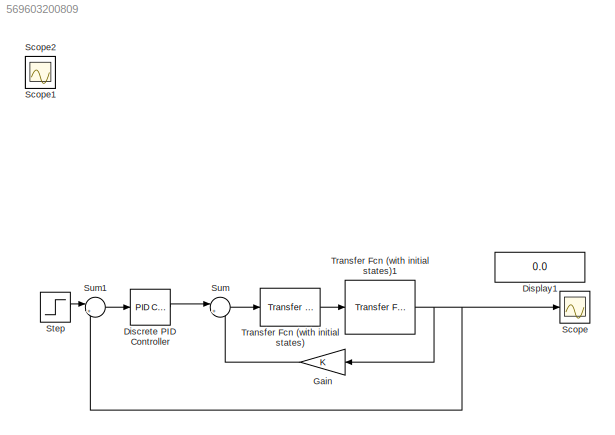
MODEL slx_569603200809
KIND model
CONFIG AbsTol = auto
CONFIG EnableMultiTasking = off
CONFIG FixedStep = auto
CONFIG MaxStep = auto
CONFIG MinStep = auto
CONFIG RelTol = 1e-3
CONFIG SampleTimeConstraint = Unconstrained
CONFIG Solver = VariableStepAuto
CONFIG SolverName = VariableStepAuto
CONFIG StartTime = 0.0
CONFIG StopTime = 27.2
WORKSPACE source: MAT-file member
WORKSPACE B = 7.85992811423e-18
BLOCK [Reference] Discrete PID Controller  REF=simulink/Continuous/PID Controller
  Ports = [1, 1]
  SourceBlock = simulink/Continuous/PID Controller
  SourceProductBaseCode = SL
  SourceProductName = Simulink
  SourceType = PID 1dof
BLOCK [Display] Display1
  Decimation = 1
  Ports = [1]
BLOCK [Gain] Gain
  Gain = K
  OutDataTypeStr = Inherit: Inherit via internal rule
  ParamDataTypeStr = Inherit: Inherit via internal rule
  SaturateOnIntegerOverflow = off
BLOCK [Scope] Scope
  Floating = off
  NumInputPorts = 1
  Ports = [1]
  ScopeSpecificationString = Simulink.scopes.TimeScopeBlockCfg('CurrentConfiguration', extmgr.ConfigurationSet(extmgr.Configuration('Core','General UI',true),extmgr.Configuration('Core','Source UI',true),extmgr.Configuration('Sources','WiredSimulink',true,'DataLoggingSaveFormat','Array'),extmgr.Configuration('Visuals','Time Domain',true,'SerializedDisplays',{struct('MinYLimReal','-1.01898','MaxYLimReal','1007.70541','YLabelRe...<+1457ch>
BLOCK [Scope] Scope1
  Floating = off
  IOType = viewer
  NumInputPorts = 1
  Ports = []
  ScopeSpecificationString = Simulink.scopes.TimeScopeBlockCfg('CurrentConfiguration', extmgr.ConfigurationSet(extmgr.Configuration('Core','General UI',true),extmgr.Configuration('Core','Source UI',true),extmgr.Configuration('Sources','WiredSimulink',true,'DataLoggingVariableName','ScopeData1'),extmgr.Configuration('Visuals','Time Domain',true,'SerializedDisplays',{struct('MinYLimReal','800.00000','MaxYLimReal','1000.00000','...<+1439ch>
BLOCK [Scope] Scope2
  Floating = off
  IOType = viewer
  NumInputPorts = 1
  Ports = []
  ScopeSpecificationString = Simulink.scopes.TimeScopeBlockCfg('CurrentConfiguration', extmgr.ConfigurationSet(extmgr.Configuration('Core','General UI',true),extmgr.Configuration('Core','Source UI',true),extmgr.Configuration('Sources','WiredSimulink',true,'DataLoggingVariableName','ScopeData1'),extmgr.Configuration('Visuals','Time Domain',true,'SerializedDisplays',{struct('MinYLimReal','0','MaxYLimReal','20','YLabelReal','','...<+1355ch>
BLOCK [Step] Step
  After = 900
  SampleTime = 0
  Time = 0
BLOCK [Sum] Sum
  IconShape = round
  InputSameDT = off
  Inputs = |+-
  OutDataTypeStr = Inherit: Inherit via internal rule
  Ports = [2, 1]
  SaturateOnIntegerOverflow = off
BLOCK [Sum] Sum1
  IconShape = round
  InputSameDT = off
  Inputs = |+-
  OutDataTypeStr = Inherit: Inherit via internal rule
  Ports = [2, 1]
  SaturateOnIntegerOverflow = off
BLOCK [Reference] Transfer Fcn (with initial states)  REF=simulink_extras/Additional
Linear/Transfer Fcn
(with initial states)
  Ports = [1, 1]
  SourceBlock = simulink_extras/Additional\nLinear/Transfer Fcn\n(with initial states)
  SourceProductBaseCode = SL
  SourceProductName = Simulink
  SourceType = Transfer Function with Initial States
BLOCK [Reference] Transfer Fcn (with initial states)1  REF=simulink_extras/Additional
Linear/Transfer Fcn
(with initial states)
  Ports = [1, 1]
  SourceBlock = simulink_extras/Additional\nLinear/Transfer Fcn\n(with initial states)
  SourceProductBaseCode = SL
  SourceProductName = Simulink
  SourceType = Transfer Function with Initial States
LINE Discrete PID Controller:1 -> Sum:1
LINE Gain:1 -> Sum:2
LINE Step:1 -> Sum1:1
LINE Sum1:1 -> Discrete PID Controller:1
LINE Sum:1 -> Transfer Fcn (with initial states):1
NET Transfer Fcn (with initial states)1:1 -> Gain:1, Scope:1, Sum1:2
LINE Transfer Fcn (with initial states):1 -> Transfer Fcn (with initial states)1:1
note: NET lines group one-source signal fan-out (src -> all destinations, sorted); 1:1 wires keep LINE
